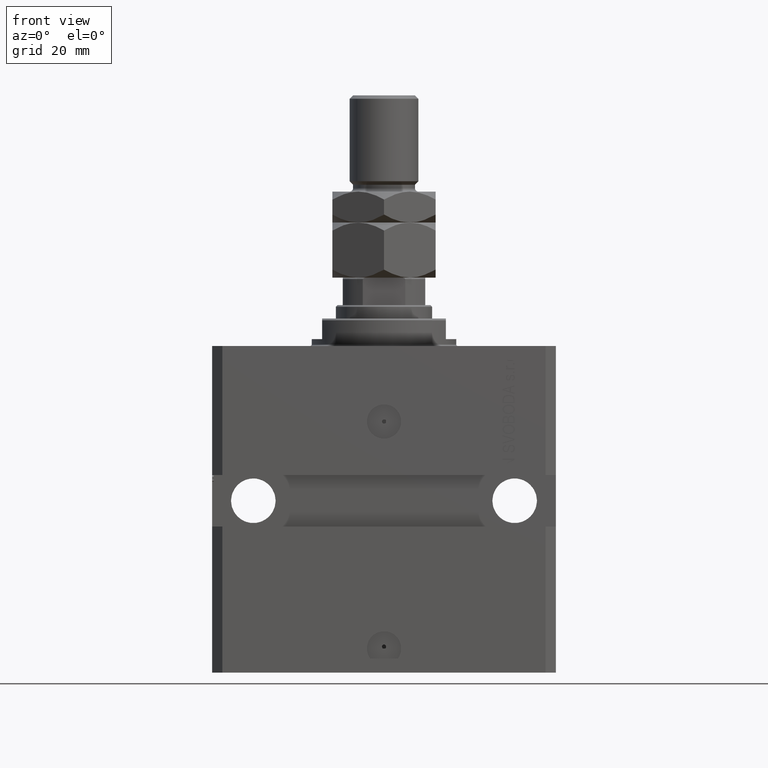
[diagram: clean part render]
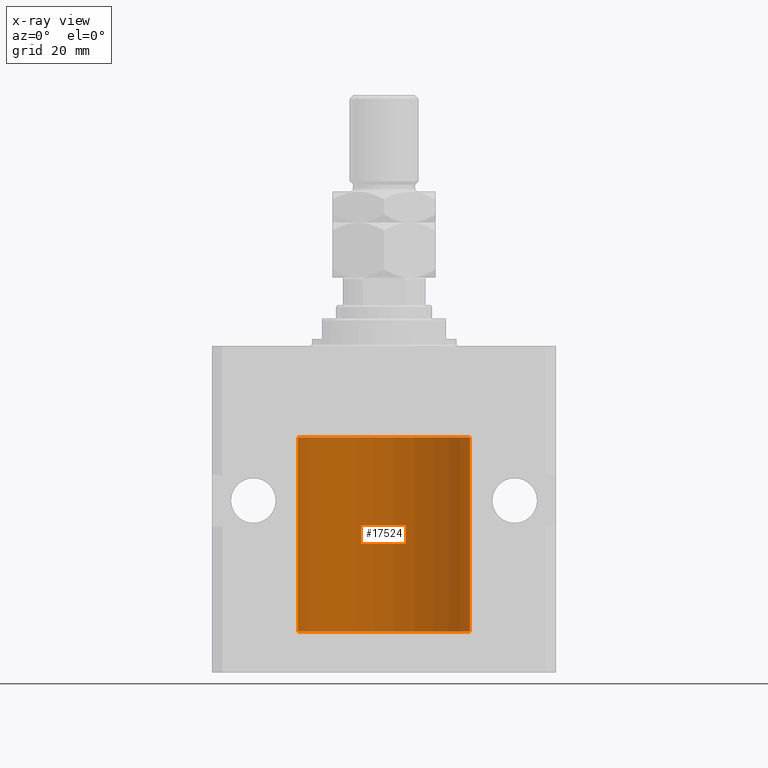
[diagram: x-ray — body ghosted, one internal face saturated and labeled with its STEP entity id]
A machine part, front view, then the same camera in x-ray: the body is ghosted and one INTERNAL B-rep face — a face not visible from any outside direction — is saturated and labeled: STEP entity #17524.
In plain terms, the highlighted cylindrical surface (partial cylindrical patch) has radius 25 mm, axis along (0, 0, 1).
Its self-contained STEP definition (entity closure, byte-faithful):
#510 = ORIENTED_EDGE ( 'NONE', *, *, #17055, .T. ) ;
#674 = B_SPLINE_CURVE_WITH_KNOTS ( 'NONE', 3,
 ( #18245, #14504, #44164, #14256, #33201, #6789, #47229, #11016, #37180, #29456, #17764, #1655 ),
 .UNSPECIFIED., .F., .F.,
 ( 4, 2, 2, 2, 2, 4 ),
 ( 1.760582088384631428E-18, 0.0002442639708601806493, 0.0004885279417203595639, 0.0009770558834406879029, 0.001465583825161016242, 0.001954111766881344581 ),
 .UNSPECIFIED. ) ;
#935 = DIRECTION ( 'NONE',  ( 0.000000000000000000, 0.000000000000000000, 1.000000000000000000 ) ) ;
#1171 = DIRECTION ( 'NONE',  ( 1.000000000000000000, 0.000000000000000000, 0.000000000000000000 ) ) ;
#1408 = AXIS2_PLACEMENT_3D ( 'NONE', #4892, #27797, #1171 ) ;
#1565 = ORIENTED_EDGE ( 'NONE', *, *, #25224, .F. ) ;
#1655 = CARTESIAN_POINT ( 'NONE',  ( -25.00000000000008171, 3.517566579358498221E-13, -81.12500000000328271 ) ) ;
#1738 = CARTESIAN_POINT ( 'NONE',  ( -25.00000000000000000, 3.061616997868383043E-15, -83.10000000000000853 ) ) ;
#3137 = CIRCLE ( 'NONE', #8709, 25.00000000000000000 ) ;
#4128 = EDGE_CURVE ( 'NONE', #15455, #24469, #3137, .T. ) ;
#4729 = VERTEX_POINT ( 'NONE', #44503 ) ;
#4892 = CARTESIAN_POINT ( 'NONE',  ( 0.000000000000000000, 0.000000000000000000, -83.10000000000000853 ) ) ;
#6789 = CARTESIAN_POINT ( 'NONE',  ( -24.99405295648007908, 0.5573304927633301320, -80.17348832933667779 ) ) ;
#8176 = EDGE_CURVE ( 'NONE', #23294, #23414, #31089, .T. ) ;
#8709 = AXIS2_PLACEMENT_3D ( 'NONE', #19848, #935, #17114 ) ;
#11016 = CARTESIAN_POINT ( 'NONE',  ( -24.99218483271614843, 0.6250578298876484640, -80.66284432778144264 ) ) ;
#12143 = ORIENTED_EDGE ( 'NONE', *, *, #4128, .T. ) ;
#13187 = CARTESIAN_POINT ( 'NONE',  ( 25.00000000000000000, 0.000000000000000000, -83.10000000000000853 ) ) ;
#14256 = CARTESIAN_POINT ( 'NONE',  ( -24.99812965334069759, 0.3150303239408748790, -79.95401901831677094 ) ) ;
#14504 = CARTESIAN_POINT ( 'NONE',  ( -25.00000000000000000, 0.08259386895070071344, -79.87500000000000000 ) ) ;
#14615 = VECTOR ( 'NONE', #42478, 1000.000000000000000 ) ;
#15455 = VERTEX_POINT ( 'NONE', #18832 ) ;
#15776 = CYLINDRICAL_SURFACE ( 'NONE', #17825, 25.00000000000000000 ) ;
#16443 = DIRECTION ( 'NONE',  ( -0.000000000000000000, -0.000000000000000000, 1.000000000000000000 ) ) ;
#16578 = LINE ( 'NONE', #31532, #14615 ) ;
#17055 = EDGE_CURVE ( 'NONE', #39638, #15455, #16578, .T. ) ;
#17114 = DIRECTION ( 'NONE',  ( 1.000000000000000000, 0.000000000000000000, 0.000000000000000000 ) ) ;
#17524 = ADVANCED_FACE ( 'NONE', ( #39443 ), #15776, .F. ) ;
#17764 = CARTESIAN_POINT ( 'NONE',  ( -24.99999999999998579, 0.1631672031814578039, -81.12499999999981526 ) ) ;
#17825 = AXIS2_PLACEMENT_3D ( 'NONE', #19255, #34461, #27218 ) ;
#18245 = CARTESIAN_POINT ( 'NONE',  ( -25.00000000000000000, -2.172643007029407462E-14, -79.87500000000000000 ) ) ;
#18832 = CARTESIAN_POINT ( 'NONE',  ( 25.00000000000000000, 0.000000000000000000, -26.60000000000000142 ) ) ;
#19120 = DIRECTION ( 'NONE',  ( -0.000000000000000000, -0.000000000000000000, 1.000000000000000000 ) ) ;
#19255 = CARTESIAN_POINT ( 'NONE',  ( 0.000000000000000000, 0.000000000000000000, -83.10000000000000853 ) ) ;
#19688 = CIRCLE ( 'NONE', #1408, 25.00000000000000000 ) ;
#19848 = CARTESIAN_POINT ( 'NONE',  ( 0.000000000000000000, 0.000000000000000000, -26.60000000000000142 ) ) ;
#20035 = VECTOR ( 'NONE', #16443, 1000.000000000000000 ) ;
#20995 = CARTESIAN_POINT ( 'NONE',  ( -25.00000000000000000, 3.061616997868383043E-15, -83.10000000000000853 ) ) ;
#23294 = VERTEX_POINT ( 'NONE', #20995 ) ;
#23414 = VERTEX_POINT ( 'NONE', #44634 ) ;
#24138 = EDGE_CURVE ( 'NONE', #4729, #23414, #674, .T. ) ;
#24469 = VERTEX_POINT ( 'NONE', #36392 ) ;
#25224 = EDGE_CURVE ( 'NONE', #4729, #24469, #46579, .T. ) ;
#27218 = DIRECTION ( 'NONE',  ( 1.000000000000000000, 0.000000000000000000, 0.000000000000000000 ) ) ;
#27797 = DIRECTION ( 'NONE',  ( 0.000000000000000000, 0.000000000000000000, 1.000000000000000000 ) ) ;
#29456 = CARTESIAN_POINT ( 'NONE',  ( -24.99815474281802352, 0.3253832813992149631, -81.05855609393753980 ) ) ;
#31089 = LINE ( 'NONE', #38815, #35096 ) ;
#31532 = CARTESIAN_POINT ( 'NONE',  ( 25.00000000000000000, 0.000000000000000000, -83.10000000000000853 ) ) ;
#33201 = CARTESIAN_POINT ( 'NONE',  ( -24.99711159039963704, 0.3843660423108775648, -80.00046193055077026 ) ) ;
#34397 = ORIENTED_EDGE ( 'NONE', *, *, #45151, .F. ) ;
#34449 = ORIENTED_EDGE ( 'NONE', *, *, #8176, .F. ) ;
#34461 = DIRECTION ( 'NONE',  ( -0.000000000000000000, -0.000000000000000000, 1.000000000000000000 ) ) ;
#35096 = VECTOR ( 'NONE', #19120, 1000.000000000000000 ) ;
#36392 = CARTESIAN_POINT ( 'NONE',  ( -25.00000000000000000, 3.061616997868383043E-15, -26.60000000000000142 ) ) ;
#37180 = CARTESIAN_POINT ( 'NONE',  ( -24.99402840204668408, 0.5587119681668529791, -80.82511555871103326 ) ) ;
#38468 = ORIENTED_EDGE ( 'NONE', *, *, #24138, .T. ) ;
#38815 = CARTESIAN_POINT ( 'NONE',  ( -25.00000000000000000, 3.061616997868383043E-15, -83.10000000000000853 ) ) ;
#39443 = FACE_OUTER_BOUND ( 'NONE', #46953, .T. ) ;
#39638 = VERTEX_POINT ( 'NONE', #13187 ) ;
#42478 = DIRECTION ( 'NONE',  ( -0.000000000000000000, -0.000000000000000000, 1.000000000000000000 ) ) ;
#44164 = CARTESIAN_POINT ( 'NONE',  ( -24.99957903978828000, 0.1636401650351763382, -79.89126259047981193 ) ) ;
#44503 = CARTESIAN_POINT ( 'NONE',  ( -25.00000000000000000, -2.172643007029407462E-14, -79.87500000000000000 ) ) ;
#44634 = CARTESIAN_POINT ( 'NONE',  ( -25.00000000000008171, 3.517566579358498221E-13, -81.12500000000328271 ) ) ;
#45151 = EDGE_CURVE ( 'NONE', #39638, #23294, #19688, .T. ) ;
#46579 = LINE ( 'NONE', #1738, #20035 ) ;
#46953 = EDGE_LOOP ( 'NONE', ( #34449, #34397, #510, #12143, #1565, #38468 ) ) ;
#47229 = CARTESIAN_POINT ( 'NONE',  ( -24.99218772708281122, 0.6249420913990306747, -80.33671206966755562 ) ) ;